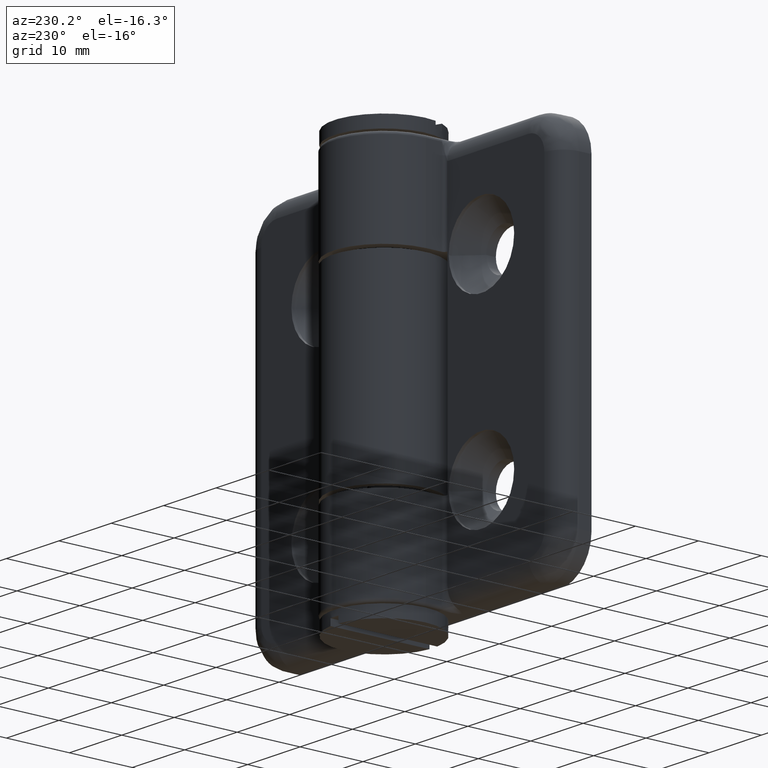
[diagram: clean part render]
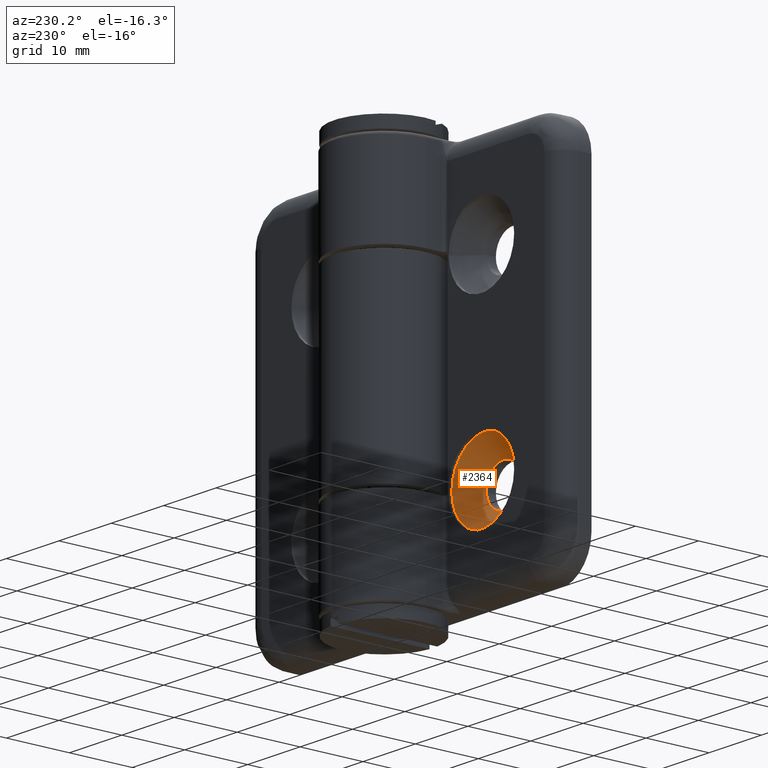
[diagram: same view with one face highlighted and labeled with its STEP entity id]
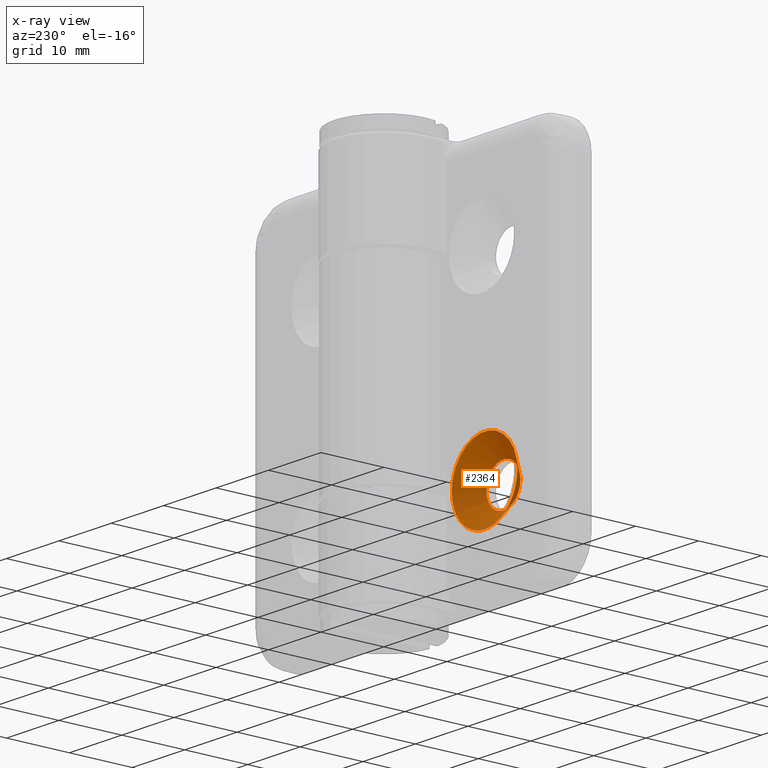
[diagram: x-ray of the same camera — body ghosted, the highlighted face saturated]
A machine part, auxiliary view. The second image highlights one B-rep face of the part: STEP entity #2364.
The next image is the same camera in x-ray: the body ghosted, the highlighted face saturated — about 0% of this face is hidden behind the body in this view.
In plain terms, the highlighted conical surface has half-angle 45 deg.
Its self-contained STEP definition (entity closure, byte-faithful):
#170=CONICAL_SURFACE('',#2607,4.75,0.785398163397448);
#218=FACE_BOUND('',#525,.T.);
#331=FACE_OUTER_BOUND('',#524,.T.);
#524=EDGE_LOOP('',(#1987));
#525=EDGE_LOOP('',(#1988));
#991=CIRCLE('',#2608,6.25);
#992=CIRCLE('',#2609,3.25);
#1208=VERTEX_POINT('',#4024);
#1209=VERTEX_POINT('',#4026);
#1490=EDGE_CURVE('',#1208,#1208,#991,.T.);
#1491=EDGE_CURVE('',#1209,#1209,#992,.T.);
#1987=ORIENTED_EDGE('',*,*,#1490,.T.);
#1988=ORIENTED_EDGE('',*,*,#1491,.T.);
#2364=ADVANCED_FACE('',(#331,#218),#170,.F.);
#2607=AXIS2_PLACEMENT_3D('',#4023,#3195,#3196);
#2608=AXIS2_PLACEMENT_3D('',#4025,#3197,#3198);
#2609=AXIS2_PLACEMENT_3D('',#4027,#3199,#3200);
#3195=DIRECTION('center_axis',(-1.76626390281275E-16,1.,0.));
#3196=DIRECTION('ref_axis',(1.,1.76626390281275E-16,0.));
#3197=DIRECTION('center_axis',(-1.76626390281275E-16,1.,0.));
#3198=DIRECTION('ref_axis',(-1.,-1.76626390281275E-16,0.));
#3199=DIRECTION('center_axis',(1.76626390281275E-16,-1.,0.));
#3200=DIRECTION('ref_axis',(1.,1.76626390281275E-16,0.));
#4023=CARTESIAN_POINT('Origin',(-15.,-5.00000000000001,-15.));
#4024=CARTESIAN_POINT('',(-8.75,-3.5,-15.));
#4025=CARTESIAN_POINT('Origin',(-15.,-3.50000000000001,-15.));
#4026=CARTESIAN_POINT('',(-11.75,-6.50000000000001,-15.));
#4027=CARTESIAN_POINT('Origin',(-15.,-6.5,-15.));